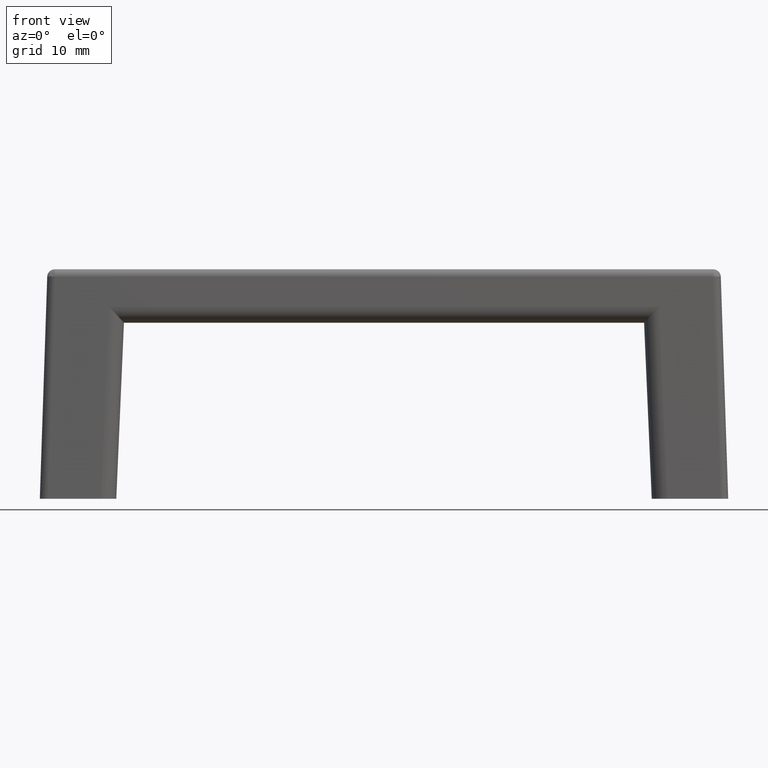
[diagram: clean part render]
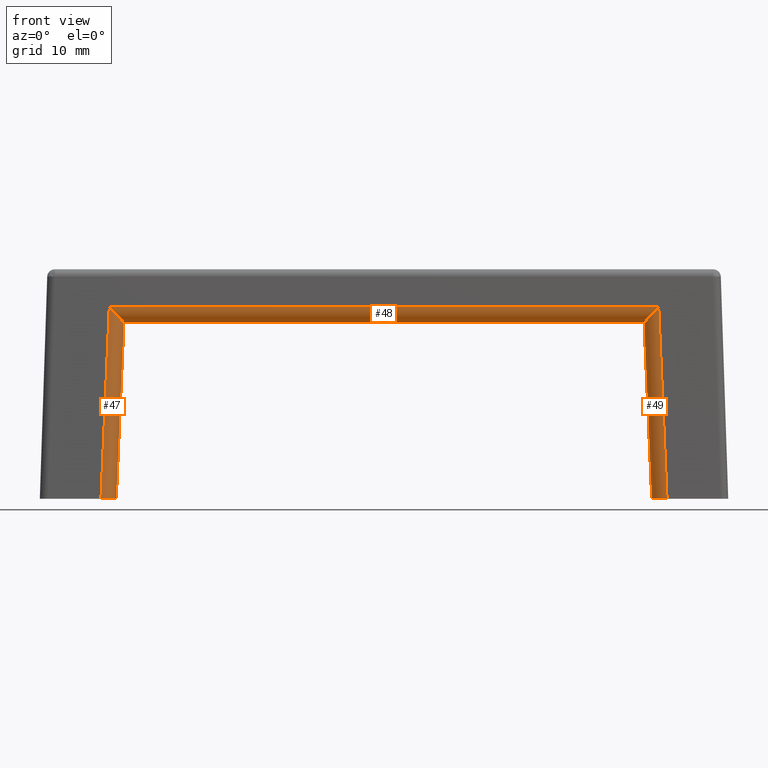
[diagram: same view with one multi-face feature highlighted, each face labeled with its STEP entity id]
A machine part, front view. The highlighted faces form ONE feature: a constant-radius fillet chain: 3 tangent blend faces with common blend radius 2 mm. The faces share edges in the B-rep.
Their STEP definitions:
[1] entity #48 (Cylinder):
#48=ADVANCED_FACE('',(#155),#154,.T.);
#154=CYLINDRICAL_SURFACE('',#459,2.00000000000E+00);
#155=FACE_OUTER_BOUND('',#460,.T.);
#456=CARTESIAN_POINT('',(-3.77555732583E+01,-3.16535440768E+00,2.50000000000E+01));
#457=DIRECTION('',(-1.00000000000E+00,-5.45018708345E-15,-8.35298061279E-15));
#458=DIRECTION('',(-4.93008411873E-15,9.98134798422E-01,-6.10485395348E-02));
#459=AXIS2_PLACEMENT_3D('',#456,#457,#458);
#460=EDGE_LOOP('',(#673,#674,#675,#676,#677,#678));
#673=ORIENTED_EDGE('',*,*,#827,.T.);
#674=ORIENTED_EDGE('',*,*,#828,.F.);
#675=ORIENTED_EDGE('',*,*,#824,.F.);
#676=ORIENTED_EDGE('',*,*,#804,.F.);
#677=ORIENTED_EDGE('',*,*,#801,.F.);
#678=ORIENTED_EDGE('',*,*,#811,.F.);
#801=EDGE_CURVE('',#883,#890,#891,.T.);
#804=EDGE_CURVE('',#890,#910,#911,.T.);
#811=EDGE_CURVE('',#952,#883,#959,.T.);
#824=EDGE_CURVE('',#910,#1045,#1046,.T.);
#827=EDGE_CURVE('',#952,#1065,#1066,.T.);
#828=EDGE_CURVE('',#1045,#1065,#1072,.T.);
#883=VERTEX_POINT('',#1427);
#890=VERTEX_POINT('',#1431);
#891=LINE('',#1432,#1433);
#910=VERTEX_POINT('',#1442);
#911=CIRCLE('',#1446,1.99811399655E+00);
#952=VERTEX_POINT('',#1468);
#959=CIRCLE('',#1475,1.99811423655E+00);
#1045=VERTEX_POINT('',#1532);
#1046=(BOUNDED_CURVE() B_SPLINE_CURVE(2,(#1533,#1534,#1535,#1536,#1537),.UNSPECIFIED.,.F.,.F.) B_SPLINE_CURVE_WITH_KNOTS((3,2,3),(0.00000000000E+00,5.00000000000E-01,1.00000000000E+00),.UNSPECIFIED.) CURVE() GEOMETRIC_REPRESENTATION_ITEM() RATIONAL_B_SPLINE_CURVE((1.00000000000E+00,9.23740992977E-01,1.00000000000E+00,9.23740992977E-01,1.00000000000E+00)) REPRESENTATION_ITEM('') );
#1065=VERTEX_POINT('',#1547);
#1066=(BOUNDED_CURVE() B_SPLINE_CURVE(2,(#1548,#1549,#1550,#1551,#1552),.UNSPECIFIED.,.F.,.F.) B_SPLINE_CURVE_WITH_KNOTS((3,2,3),(0.00000000000E+00,5.00000000000E-01,1.00000000000E+00),.UNSPECIFIED.) CURVE() GEOMETRIC_REPRESENTATION_ITEM() RATIONAL_B_SPLINE_CURVE((1.00000000000E+00,9.23740992977E-01,1.00000000000E+00,9.23740992977E-01,1.00000000000E+00)) REPRESENTATION_ITEM('') );
#1072=LINE('',#1553,#1554);
#1427=CARTESIAN_POINT('',(3.40000000000E+01,-3.16535440768E+00,2.30000000000E+01));
#1431=CARTESIAN_POINT('',(-3.40000000000E+01,-3.16535440768E+00,2.30000000000E+01));
#1432=CARTESIAN_POINT('',(3.40000000000E+01,-3.16535440768E+00,2.30000000000E+01));
#1433=VECTOR('',#1434,6.80000000000E+01);
#1434=DIRECTION('',(-1.00000000000E+00,0.00000000000E+00,0.00000000000E+00));
#1442=CARTESIAN_POINT('',(-3.39999558109E+01,-3.22910674841E+00,2.30010163485E+01));
#1443=CARTESIAN_POINT('',(-3.39132074741E+01,-3.16535439619E+00,2.49962280933E+01));
#1444=DIRECTION('',(-9.99056158354E-01,2.58022986576E-13,4.34372243087E-02));
#1445=DIRECTION('',(4.34372243087E-02,5.74755272141E-09,9.99056158354E-01));
#1446=AXIS2_PLACEMENT_3D('',#1443,#1444,#1445);
#1468=CARTESIAN_POINT('',(3.39999558109E+01,-3.22910674841E+00,2.30010163485E+01));
#1472=CARTESIAN_POINT('',(3.39132074638E+01,-3.16535440768E+00,2.49962283334E+01));
#1473=DIRECTION('',(9.99056158355E-01,-2.17422000542E-13,4.34372242751E-02));
#1474=DIRECTION('',(-4.34151089014E-02,3.19062541941E-02,9.98547504760E-01));
#1475=AXIS2_PLACEMENT_3D('',#1472,#1473,#1474);
#1532=CARTESIAN_POINT('',(-3.59149329449E+01,-5.16424368668E+00,2.50666457074E+01));
#1533=CARTESIAN_POINT('',(-3.39999558109E+01,-3.22910674841E+00,2.30010163485E+01));
#1534=CARTESIAN_POINT('',(-3.39988065015E+01,-4.05796048224E+00,2.30274504644E+01));
#1535=CARTESIAN_POINT('',(-3.45598585698E+01,-4.62491899170E+00,2.36326407842E+01));
#1536=CARTESIAN_POINT('',(-3.51209106380E+01,-5.19187750117E+00,2.42378311039E+01));
#1537=CARTESIAN_POINT('',(-3.59149329449E+01,-5.16424368668E+00,2.50666457074E+01));
#1547=CARTESIAN_POINT('',(3.59149329449E+01,-5.16424368668E+00,2.50666457074E+01));
#1548=CARTESIAN_POINT('',(3.39999558109E+01,-3.22910674841E+00,2.30010163485E+01));
#1549=CARTESIAN_POINT('',(3.39988065015E+01,-4.05796048224E+00,2.30274504644E+01));
#1550=CARTESIAN_POINT('',(3.45598585698E+01,-4.62491899170E+00,2.36326407842E+01));
#1551=CARTESIAN_POINT('',(3.51209106380E+01,-5.19187750117E+00,2.42378311039E+01));
#1552=CARTESIAN_POINT('',(3.59149329449E+01,-5.16424368668E+00,2.50666457074E+01));
#1553=CARTESIAN_POINT('',(-3.59149329449E+01,-5.16424368668E+00,2.50666457074E+01));
#1554=VECTOR('',#1555,7.18298658898E+01);
#1555=DIRECTION('',(1.00000000000E+00,0.00000000000E+00,0.00000000000E+00));
[2] entity #47 (Cylinder):
#47=ADVANCED_FACE('',(#145),#144,.T.);
#144=CYLINDRICAL_SURFACE('',#454,2.00000000000E+00);
#145=FACE_OUTER_BOUND('',#455,.T.);
#451=CARTESIAN_POINT('',(-3.70327146190E+01,-4.02252697653E+00,-7.08978503621E-01));
#452=DIRECTION('',(-4.34131464355E-02,-3.32914370627E-02,-9.98502368017E-01));
#453=DIRECTION('',(4.21335063078E-02,9.98494435643E-01,-3.51230641651E-02));
#454=AXIS2_PLACEMENT_3D('',#451,#452,#453);
#455=EDGE_LOOP('',(#669,#670,#671,#672));
#669=ORIENTED_EDGE('',*,*,#824,.T.);
#670=ORIENTED_EDGE('',*,*,#825,.F.);
#671=ORIENTED_EDGE('',*,*,#826,.F.);
#672=ORIENTED_EDGE('',*,*,#805,.F.);
#805=EDGE_CURVE('',#910,#917,#918,.T.);
#824=EDGE_CURVE('',#910,#1045,#1046,.T.);
#825=EDGE_CURVE('',#1052,#1045,#1053,.T.);
#826=EDGE_CURVE('',#917,#1052,#1059,.T.);
#910=VERTEX_POINT('',#1442);
#917=VERTEX_POINT('',#1447);
#918=LINE('',#1448,#1449);
#1045=VERTEX_POINT('',#1532);
#1046=(BOUNDED_CURVE() B_SPLINE_CURVE(2,(#1533,#1534,#1535,#1536,#1537),.UNSPECIFIED.,.F.,.F.) B_SPLINE_CURVE_WITH_KNOTS((3,2,3),(0.00000000000E+00,5.00000000000E-01,1.00000000000E+00),.UNSPECIFIED.) CURVE() GEOMETRIC_REPRESENTATION_ITEM() RATIONAL_B_SPLINE_CURVE((1.00000000000E+00,9.23740992977E-01,1.00000000000E+00,9.23740992977E-01,1.00000000000E+00)) REPRESENTATION_ITEM('') );
#1052=VERTEX_POINT('',#1538);
#1053=LINE('',#1539,#1540);
#1059=(BOUNDED_CURVE() B_SPLINE_CURVE(2,(#1542,#1543,#1544,#1545,#1546),.UNSPECIFIED.,.F.,.F.) B_SPLINE_CURVE_WITH_KNOTS((3,2,3),(0.00000000000E+00,5.00000000000E-01,1.00000000000E+00),.UNSPECIFIED.) CURVE() GEOMETRIC_REPRESENTATION_ITEM() RATIONAL_B_SPLINE_CURVE((1.00000000000E+00,9.23740992977E-01,1.00000000000E+00,9.23740992977E-01,1.00000000000E+00)) REPRESENTATION_ITEM('') );
#1442=CARTESIAN_POINT('',(-3.39999558109E+01,-3.22910674841E+00,2.30010163485E+01));
#1447=CARTESIAN_POINT('',(-3.50000000000E+01,-3.99599214866E+00,0.00000000000E+00));
#1448=CARTESIAN_POINT('',(-3.39999558109E+01,-3.22910674841E+00,2.30010163485E+01));
#1449=VECTOR('',#1450,2.30355150726E+01);
#1450=DIRECTION('',(-4.34131464355E-02,-3.32914370627E-02,-9.98502368017E-01));
#1532=CARTESIAN_POINT('',(-3.59149329449E+01,-5.16424368668E+00,2.50666457074E+01));
#1533=CARTESIAN_POINT('',(-3.39999558109E+01,-3.22910674841E+00,2.30010163485E+01));
#1534=CARTESIAN_POINT('',(-3.39988065015E+01,-4.05796048224E+00,2.30274504644E+01));
#1535=CARTESIAN_POINT('',(-3.45598585698E+01,-4.62491899170E+00,2.36326407842E+01));
#1536=CARTESIAN_POINT('',(-3.51209106380E+01,-5.19187750117E+00,2.42378311039E+01));
#1537=CARTESIAN_POINT('',(-3.59149329449E+01,-5.16424368668E+00,2.50666457074E+01));
#1538=CARTESIAN_POINT('',(-3.70047871061E+01,-6.00000000000E+00,0.00000000000E+00));
#1539=CARTESIAN_POINT('',(-3.70047871061E+01,-6.00000000000E+00,0.00000000000E+00));
#1540=VECTOR('',#1541,2.51042426240E+01);
#1541=DIRECTION('',(4.34131464355E-02,3.32914370627E-02,9.98502368017E-01));
#1542=CARTESIAN_POINT('',(-3.50000000000E+01,-3.99599214866E+00,0.00000000000E+00));
#1543=CARTESIAN_POINT('',(-3.50000000000E+01,-4.82572723213E+00,0.00000000000E+00));
#1544=CARTESIAN_POINT('',(-3.55873646908E+01,-5.41286361607E+00,0.00000000000E+00));
#1545=CARTESIAN_POINT('',(-3.61747293817E+01,-6.00000000000E+00,0.00000000000E+00));
#1546=CARTESIAN_POINT('',(-3.70047871061E+01,-6.00000000000E+00,0.00000000000E+00));
[3] entity #49 (Cylinder):
#49=ADVANCED_FACE('',(#165),#164,.T.);
#164=CYLINDRICAL_SURFACE('',#464,2.00000000000E+00);
#165=FACE_OUTER_BOUND('',#465,.T.);
#461=CARTESIAN_POINT('',(3.58870054320E+01,-3.14393815215E+00,2.56423327963E+01));
#462=DIRECTION('',(-4.34131464355E-02,3.32914370627E-02,9.98502368017E-01));
#463=DIRECTION('',(-8.71830816366E-03,9.99393959467E-01,-3.37002208199E-02));
#464=AXIS2_PLACEMENT_3D('',#461,#462,#463);
#465=EDGE_LOOP('',(#679,#680,#681,#682));
#679=ORIENTED_EDGE('',*,*,#829,.F.);
#680=ORIENTED_EDGE('',*,*,#830,.F.);
#681=ORIENTED_EDGE('',*,*,#827,.F.);
#682=ORIENTED_EDGE('',*,*,#810,.F.);
#810=EDGE_CURVE('',#945,#952,#953,.T.);
#827=EDGE_CURVE('',#952,#1065,#1066,.T.);
#829=EDGE_CURVE('',#1078,#945,#1079,.T.);
#830=EDGE_CURVE('',#1065,#1078,#1085,.T.);
#945=VERTEX_POINT('',#1464);
#952=VERTEX_POINT('',#1468);
#953=LINE('',#1469,#1470);
#1065=VERTEX_POINT('',#1547);
#1066=(BOUNDED_CURVE() B_SPLINE_CURVE(2,(#1548,#1549,#1550,#1551,#1552),.UNSPECIFIED.,.F.,.F.) B_SPLINE_CURVE_WITH_KNOTS((3,2,3),(0.00000000000E+00,5.00000000000E-01,1.00000000000E+00),.UNSPECIFIED.) CURVE() GEOMETRIC_REPRESENTATION_ITEM() RATIONAL_B_SPLINE_CURVE((1.00000000000E+00,9.23740992977E-01,1.00000000000E+00,9.23740992977E-01,1.00000000000E+00)) REPRESENTATION_ITEM('') );
#1078=VERTEX_POINT('',#1556);
#1079=(BOUNDED_CURVE() B_SPLINE_CURVE(2,(#1557,#1558,#1559,#1560,#1561),.UNSPECIFIED.,.F.,.F.) B_SPLINE_CURVE_WITH_KNOTS((3,2,3),(0.00000000000E+00,5.00000000000E-01,1.00000000000E+00),.UNSPECIFIED.) CURVE() GEOMETRIC_REPRESENTATION_ITEM() RATIONAL_B_SPLINE_CURVE((1.00000000000E+00,9.23740992977E-01,1.00000000000E+00,9.23740992977E-01,1.00000000000E+00)) REPRESENTATION_ITEM('') );
#1085=LINE('',#1562,#1563);
#1464=CARTESIAN_POINT('',(3.50000000000E+01,-3.99599214866E+00,0.00000000000E+00));
#1468=CARTESIAN_POINT('',(3.39999558109E+01,-3.22910674841E+00,2.30010163485E+01));
#1469=CARTESIAN_POINT('',(3.50000000000E+01,-3.99599214866E+00,0.00000000000E+00));
#1470=VECTOR('',#1471,2.30355150726E+01);
#1471=DIRECTION('',(-4.34131464355E-02,3.32914370627E-02,9.98502368017E-01));
#1547=CARTESIAN_POINT('',(3.59149329449E+01,-5.16424368668E+00,2.50666457074E+01));
#1548=CARTESIAN_POINT('',(3.39999558109E+01,-3.22910674841E+00,2.30010163485E+01));
#1549=CARTESIAN_POINT('',(3.39988065015E+01,-4.05796048224E+00,2.30274504644E+01));
#1550=CARTESIAN_POINT('',(3.45598585698E+01,-4.62491899170E+00,2.36326407842E+01));
#1551=CARTESIAN_POINT('',(3.51209106380E+01,-5.19187750117E+00,2.42378311039E+01));
#1552=CARTESIAN_POINT('',(3.59149329449E+01,-5.16424368668E+00,2.50666457074E+01));
#1556=CARTESIAN_POINT('',(3.70047871061E+01,-6.00000000000E+00,0.00000000000E+00));
#1557=CARTESIAN_POINT('',(3.70047871061E+01,-6.00000000000E+00,0.00000000000E+00));
#1558=CARTESIAN_POINT('',(3.61747293817E+01,-6.00000000000E+00,0.00000000000E+00));
#1559=CARTESIAN_POINT('',(3.55873646908E+01,-5.41286361607E+00,0.00000000000E+00));
#1560=CARTESIAN_POINT('',(3.50000000000E+01,-4.82572723213E+00,0.00000000000E+00));
#1561=CARTESIAN_POINT('',(3.50000000000E+01,-3.99599214866E+00,0.00000000000E+00));
#1562=CARTESIAN_POINT('',(3.59149329449E+01,-5.16424368668E+00,2.50666457074E+01));
#1563=VECTOR('',#1564,2.51042426240E+01);
#1564=DIRECTION('',(4.34131464355E-02,-3.32914370627E-02,-9.98502368017E-01));